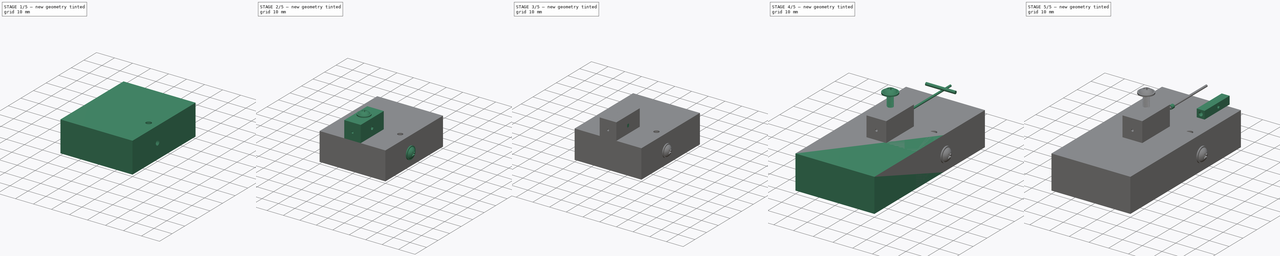
[diagram: build sequence overview — one tinted view per stage of 5, left to right]
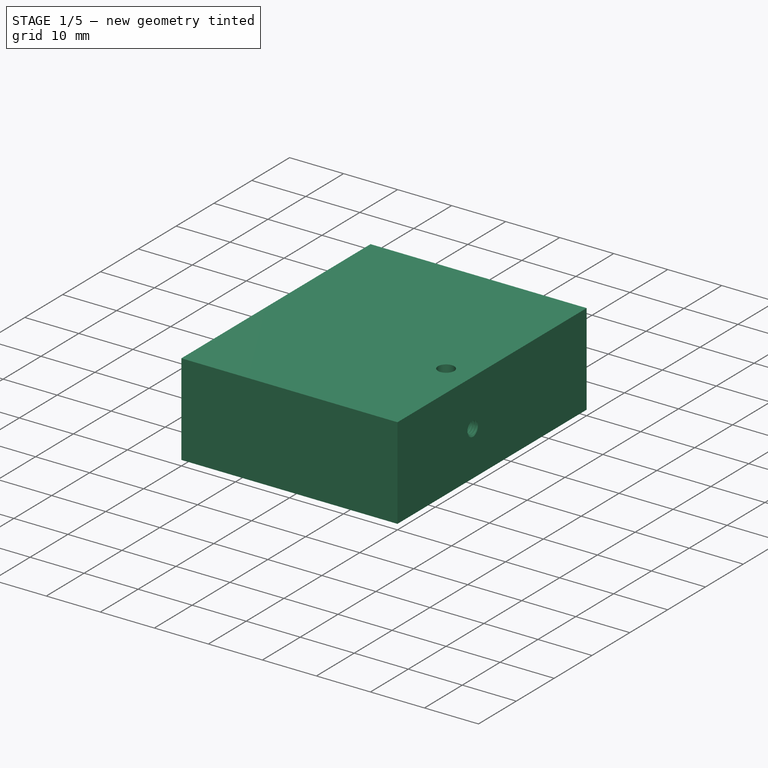
[diagram: stage 1 of 5 — iso view after this stage's code; geometry added in this stage tinted green]
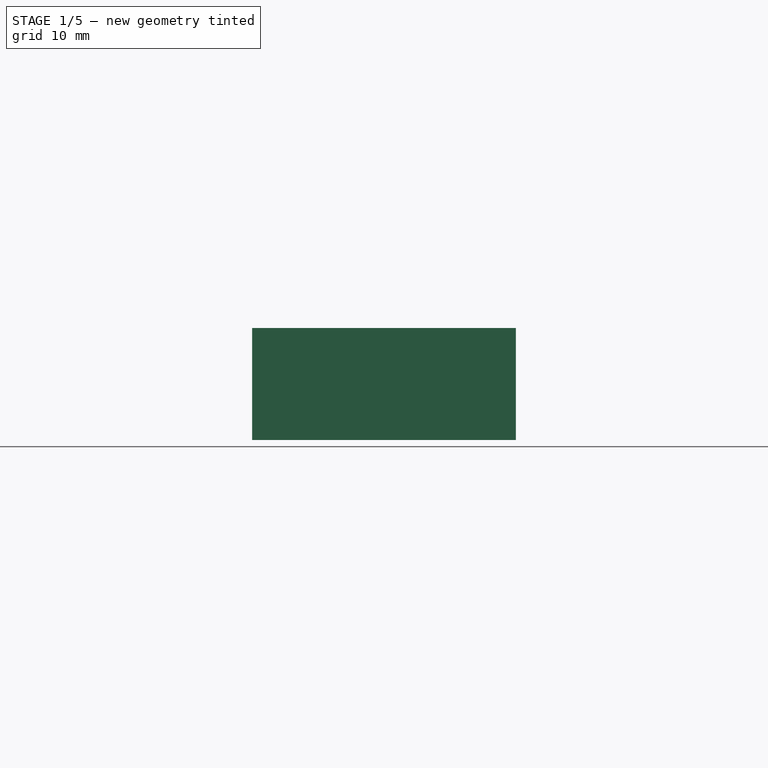
[diagram: stage 1 of 5 — front view after this stage's code; geometry added in this stage tinted green]
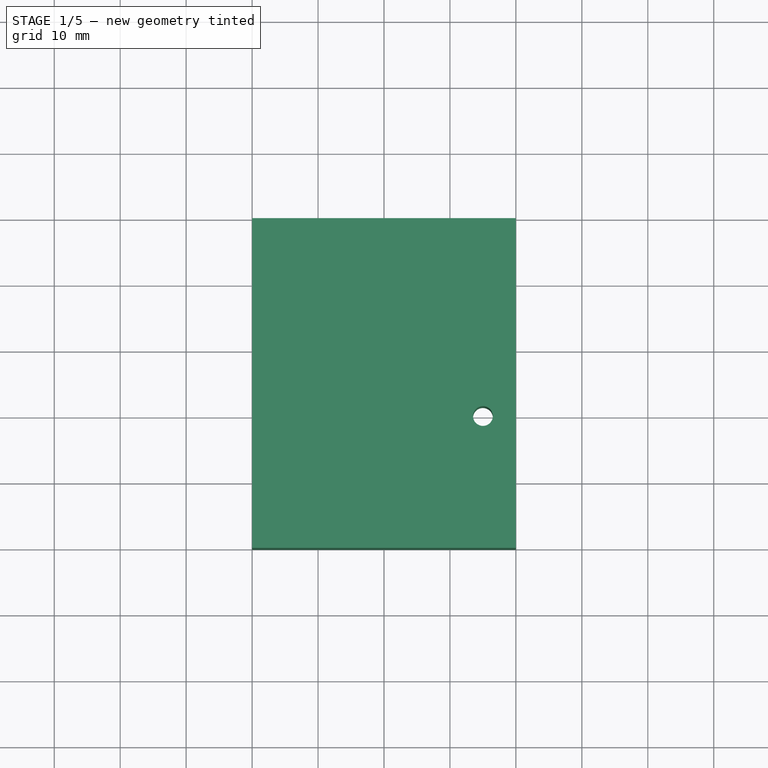
[diagram: stage 1 of 5 — top view after this stage's code; geometry added in this stage tinted green]
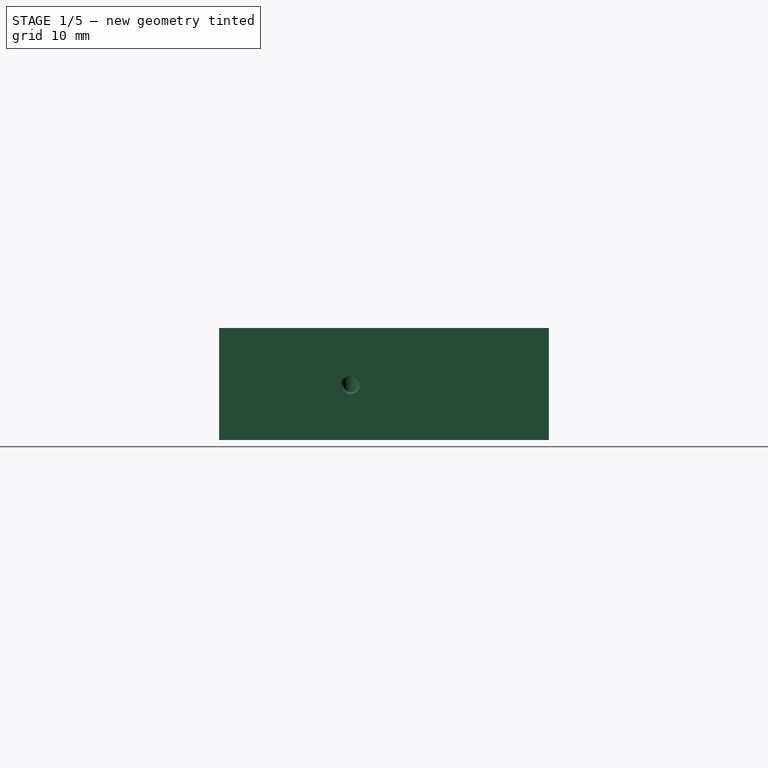
[diagram: stage 1 of 5 — right view after this stage's code; geometry added in this stage tinted green]
FCSTD DOCUMENT  (FreeCAD 0.18R4 (GitTag))
Label: Yb Copper collimator design
License: All rights reserved
LicenseURL: http://en.wikipedia.org/wiki/All_rights_reserved
objects: Part::FeaturePython×12, Sketcher::SketchObject×6, PartDesign::Body×6, Part::Feature×6, PartDesign::Pad×4, PartDesign::Revolution×2, Part::Cylinder×2, App::DocumentObjectGroup×2, Part::Cut×2
note: 46 computed .brp shape members not serialized (recipe doc carries the construction recipe); baked Part::Feature solids carry a one-line shape summary decoded from their .brp

FEATURE [PartDesign::Body] Body062021011152002  label="mainbody_source"
  Group = -> [Sketch199,Pad091]
  Origin = -> Origin207
  Placement = pos=(0,30,0) rot=(0,0,1;0rad)
  Tip = -> Pad091
FEATURE [Part::FeaturePython] Screw001  label="M3x6-Screw"  # Fasteners workbench fastener (typed FeaturePython)
  Placement = pos=(20.5,0,-13) rot=(0,1,0;1.5708rad)
  diameter = 1
  invert = false
  length = 2
  lengthCustom = 6
  matchOuter = false
  offset = 0
  thread = true
  type = 1
FEATURE [Part::Cylinder] Cylinder
  Angle = 360
  AttacherType = Attacher::AttachEngine3D
  Height = 20
  Placement = pos=(15,0,-23) rot=(0,0,1;0rad)
  Radius = 1.5
FEATURE [App::DocumentObjectGroup] GrExplode_Slice021  label="Exploded Slice021"
  Group = -> [Slice021_child0,Slice021_child1]
FEATURE [Part::Feature] Body062021011152002002  label="mainbody_source001"
  Placement = pos=(0,30,0) rot=(0,0,1;0rad)
  shape: bbox 40 x 50 x 17 mm, 6 faces (baked)
FEATURE [Part::Cut] Cut
  Base = -> Body062021011152002002
  Tool = -> Screw001
FEATURE [Part::Cut] Cut001
  Base = -> Cut
  Tool = -> Cylinder
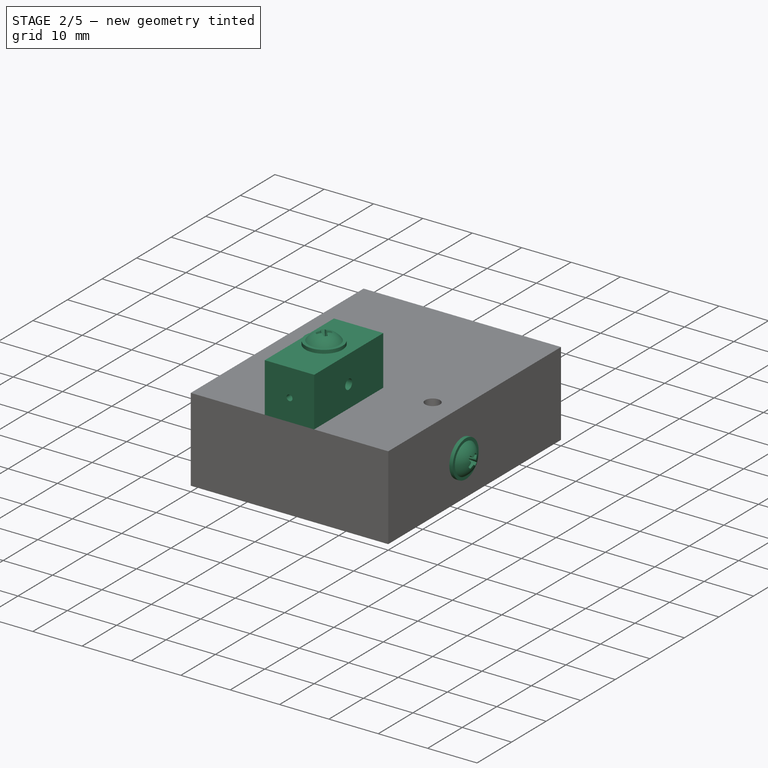
[diagram: stage 2 of 5 — iso view after this stage's code; geometry added in this stage tinted green]
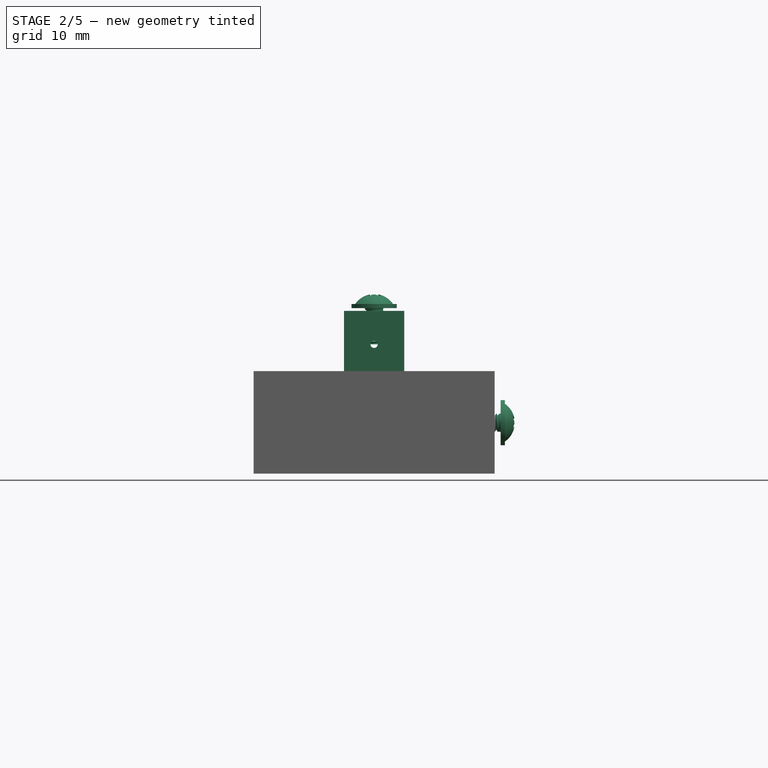
[diagram: stage 2 of 5 — front view after this stage's code; geometry added in this stage tinted green]
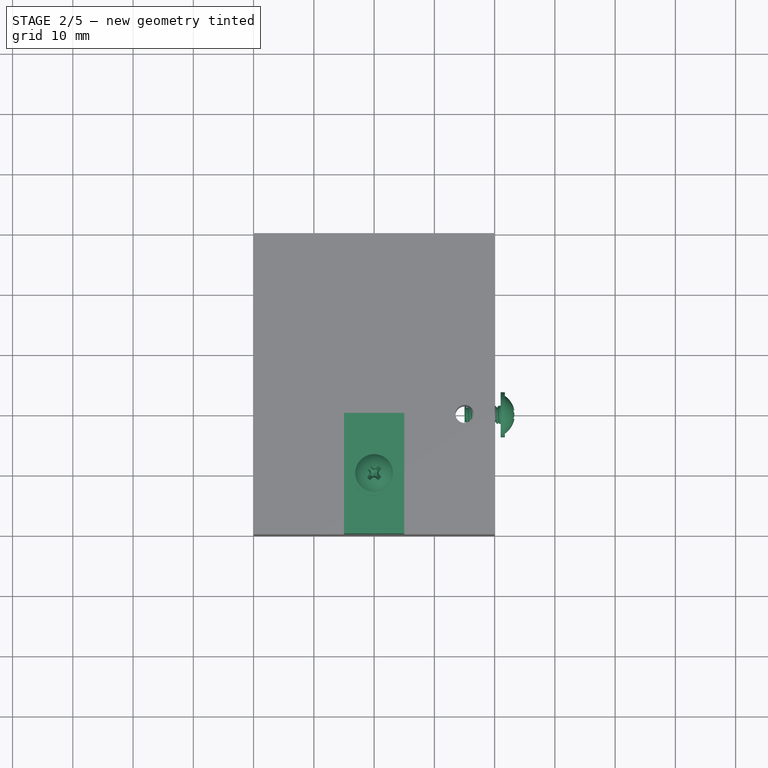
[diagram: stage 2 of 5 — top view after this stage's code; geometry added in this stage tinted green]
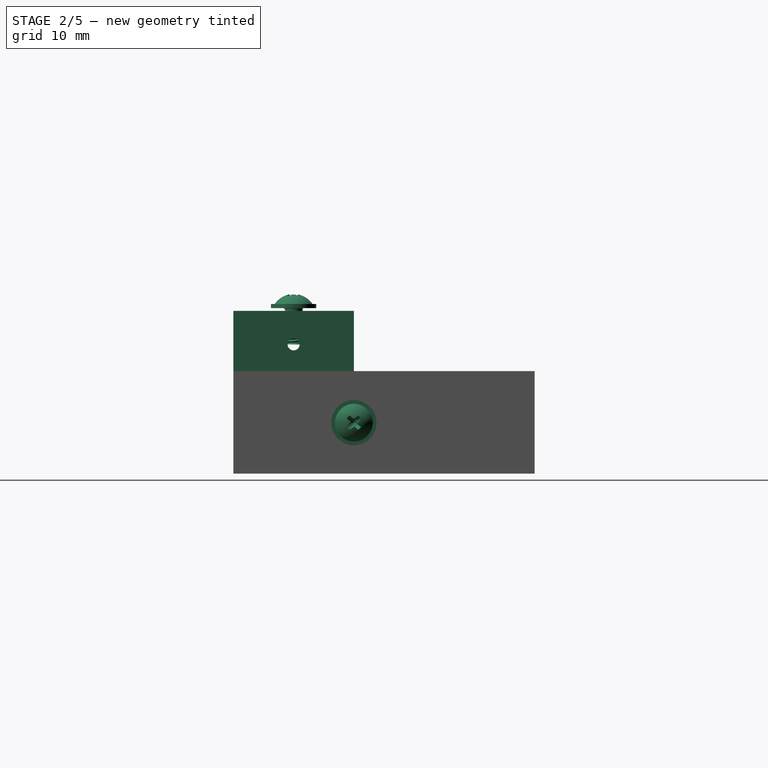
[diagram: stage 2 of 5 — right view after this stage's code; geometry added in this stage tinted green]
FEATURE [Part::Cylinder] Cylinder001
  Angle = 360
  AttacherType = Attacher::AttachEngine3D
  Height = 15
  Placement = pos=(7,-10,0) rot=(0,-1,0;1.5708rad)
  Radius = 1
FEATURE [Part::Feature] Body062021011152003  label="tube036"
  Placement = pos=(2.2e-15,-25.7426,-1e-16) rot=(0,0,1;0rad)
  shape: bbox 1.067 x 30 x 1.067 mm, 4 faces (baked)
FEATURE [Part::Feature] Body062021011152004  label="Body062021011152003"
  shape: bbox 10 x 20 x 10 mm, 7 faces (baked)
FEATURE [Part::Feature] Body062021011152002001  label="Body062021011152004"
  Placement = pos=(0,30,0) rot=(0,0,1;0rad)
  shape: bbox 40 x 50 x 17 mm, 6 faces (baked)
FEATURE [Part::FeaturePython] Slice  # WARN: FeaturePython — macro-defined, semantics opaque (R4)
  Base = -> Body062021011152004
  Mode = 1
  Tolerance = 0
  Tools = -> [Cylinder001]
FEATURE [Part::FeaturePython] Slice_child0  label="Slice.0"  # WARN: FeaturePython — macro-defined, semantics opaque (R4)
  Base = -> Slice
  FilterType = 1
  Invert = false
  OverrideMaxVal = 0
  WindowFrom = 80
  WindowTo = 100
  items = 0
FEATURE [App::DocumentObjectGroup] GrExplode_Slice  label="Exploded Slice"
  Group = -> [Slice_child0,Slice_child1]
FEATURE [Part::Feature] Slice_child0023  label="Slice.023"
  shape: bbox 10 x 20 x 10 mm, 9 faces (baked)
FEATURE [Part::FeaturePython] Screw003  label="M3x6-Screw002"  # Fasteners workbench fastener (typed FeaturePython)
  Placement = pos=(0,-10,6) rot=(0,0,1;0rad)
  diameter = 1
  invert = false
  length = 2
  lengthCustom = 6
  matchOuter = false
  offset = 0
  thread = true
  type = 1
FEATURE [Part::FeaturePython] Screw004  label="M3x6-Screw004"  # Fasteners workbench fastener (typed FeaturePython)
  Placement = pos=(21,0,-13) rot=(0,1,0;1.5708rad)
  diameter = 1
  invert = false
  length = 2
  lengthCustom = 6
  matchOuter = false
  offset = 0
  thread = true
  type = 1
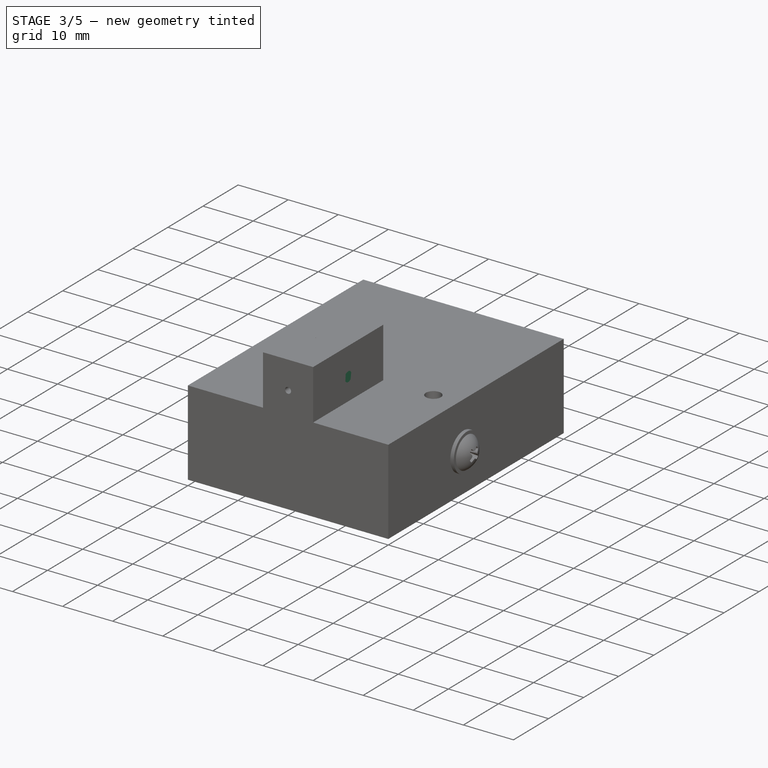
[diagram: stage 3 of 5 — iso view after this stage's code; geometry added in this stage tinted green]
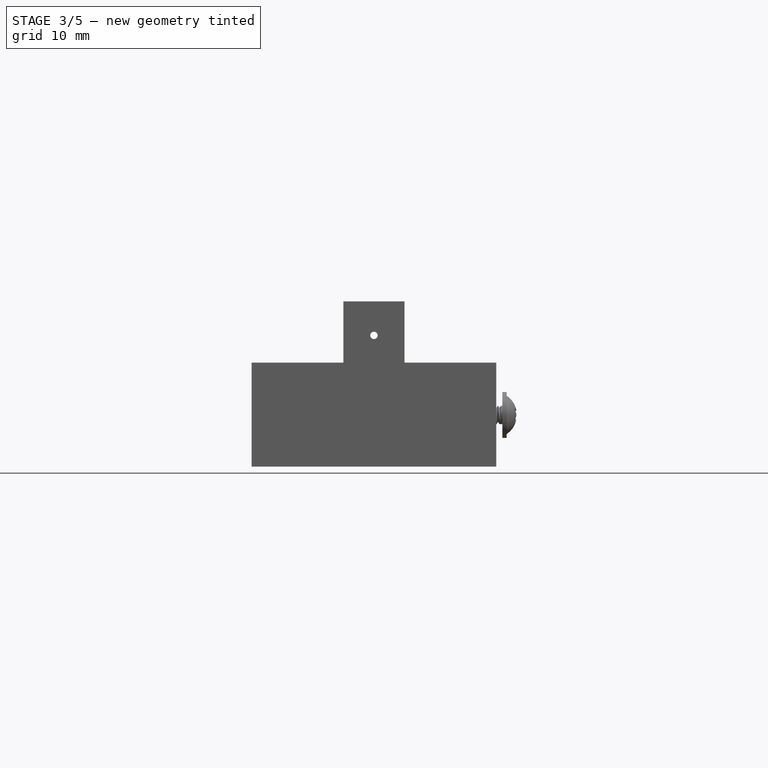
[diagram: stage 3 of 5 — front view after this stage's code; geometry added in this stage tinted green]
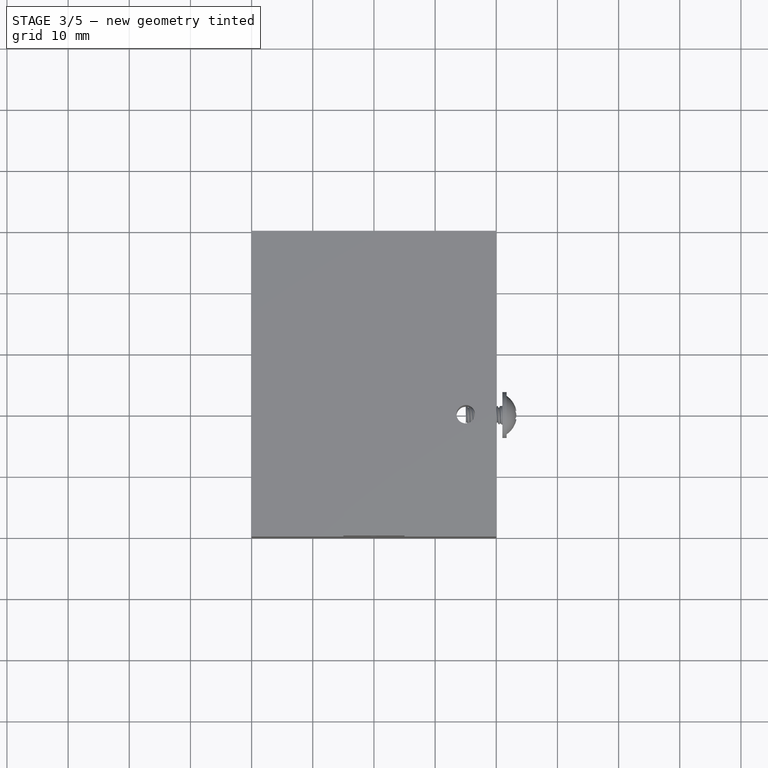
[diagram: stage 3 of 5 — top view after this stage's code; geometry added in this stage tinted green]
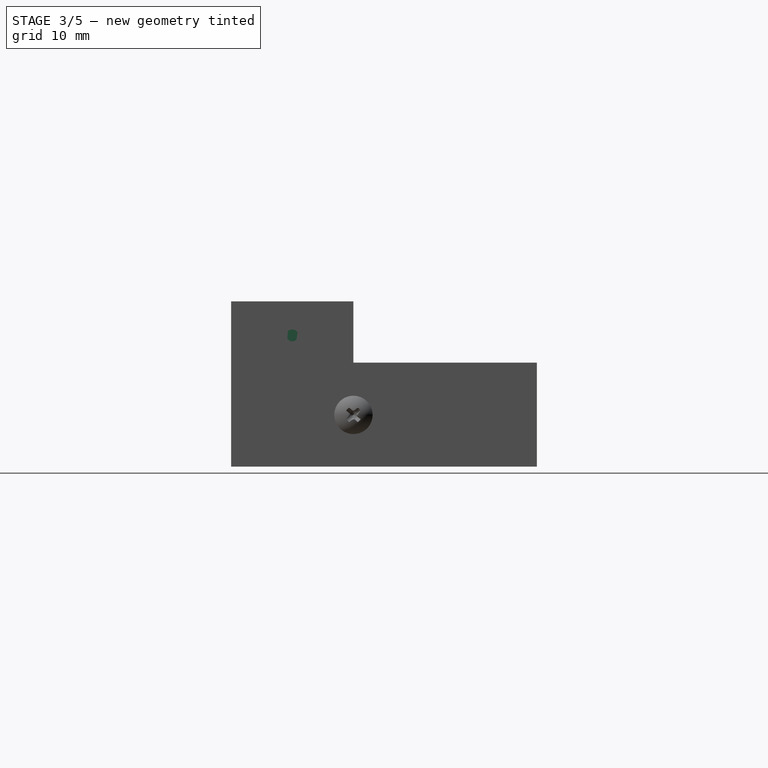
[diagram: stage 3 of 5 — right view after this stage's code; geometry added in this stage tinted green]
FEATURE [Part::FeaturePython] Slice_child1  label="Slice.1"  # WARN: FeaturePython — macro-defined, semantics opaque (R4)
  Base = -> Slice
  FilterType = 1
  Invert = false
  OverrideMaxVal = 0
  WindowFrom = 80
  WindowTo = 100
  items = 1
FEATURE [Part::FeaturePython] Slice021  # WARN: FeaturePython — macro-defined, semantics opaque (R4)
  Base = -> Slice_child0
  Mode = 1
  Tolerance = 0
  Tools = -> [Screw003]
FEATURE [Part::FeaturePython] Slice021_child0  label="sliced_body"  # WARN: FeaturePython — macro-defined, semantics opaque (R4)
  Base = -> Slice021
  FilterType = 1
  Invert = false
  OverrideMaxVal = 0
  WindowFrom = 80
  WindowTo = 100
  items = 0
FEATURE [Part::FeaturePython] Slice021_child1  label="Slice021.1"  # WARN: FeaturePython — macro-defined, semantics opaque (R4)
  Base = -> Slice021
  FilterType = 1
  Invert = false
  OverrideMaxVal = 0
  WindowFrom = 80
  WindowTo = 100
  items = 1
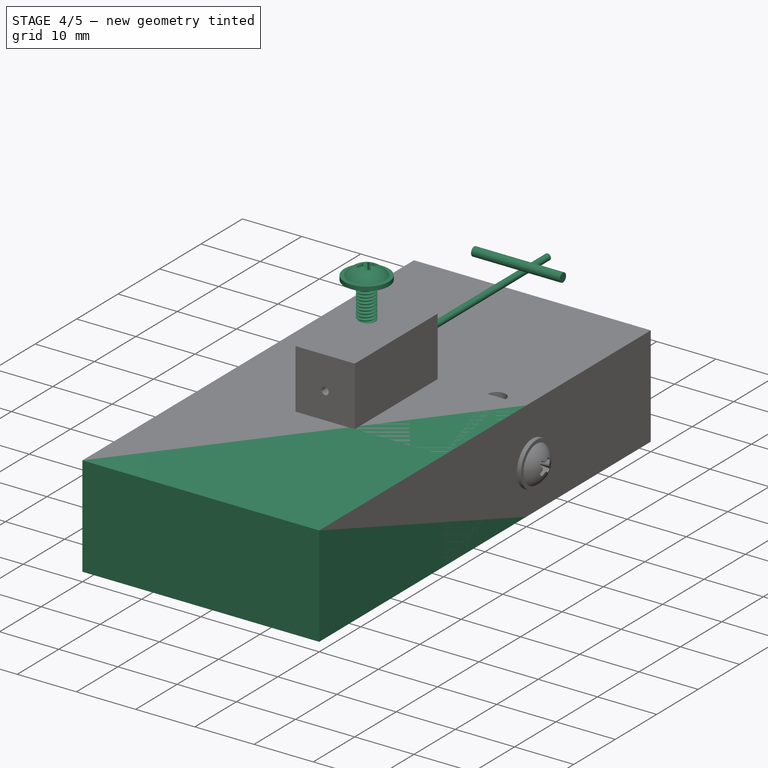
[diagram: stage 4 of 5 — iso view after this stage's code; geometry added in this stage tinted green]
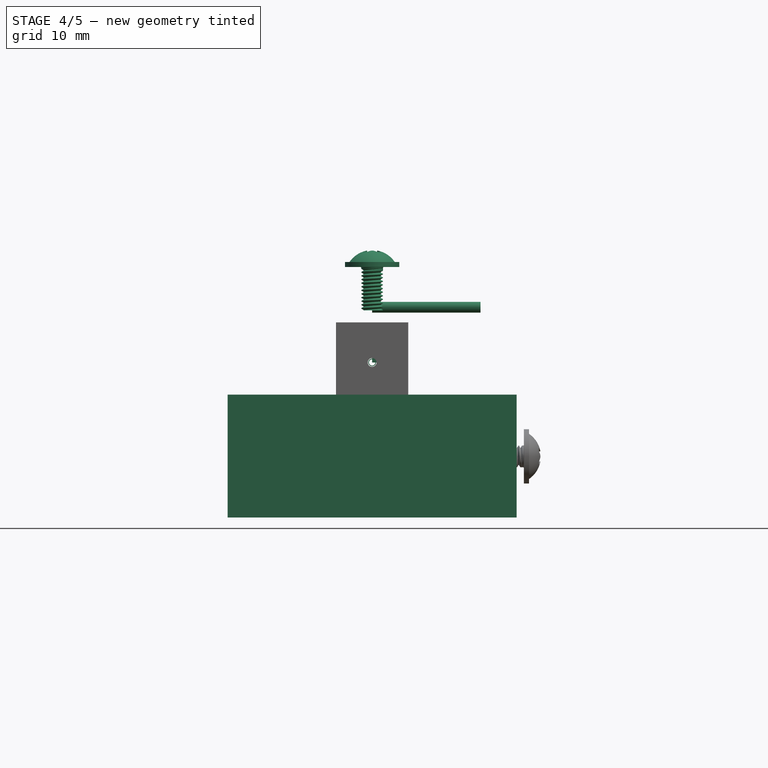
[diagram: stage 4 of 5 — front view after this stage's code; geometry added in this stage tinted green]
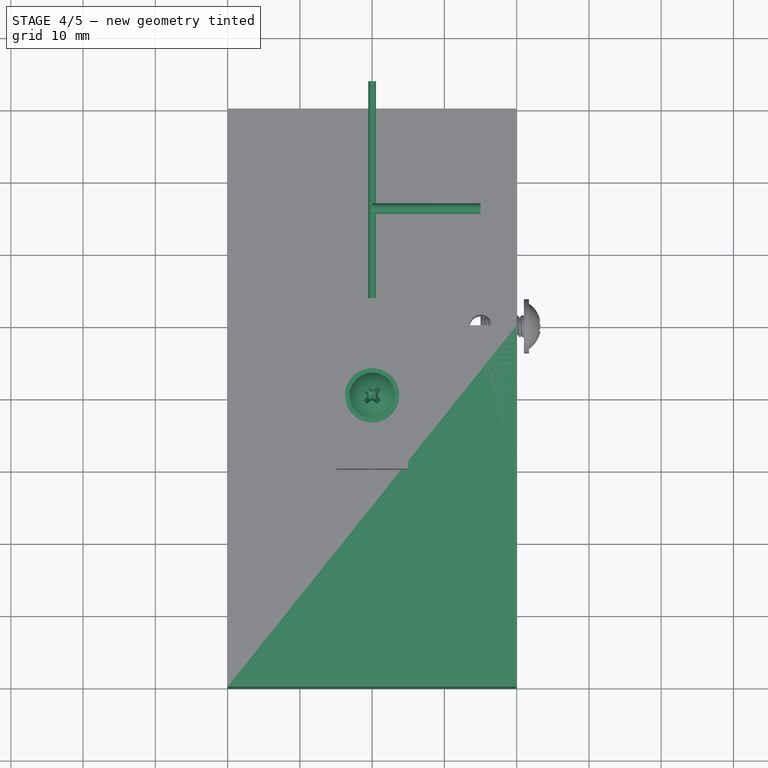
[diagram: stage 4 of 5 — top view after this stage's code; geometry added in this stage tinted green]
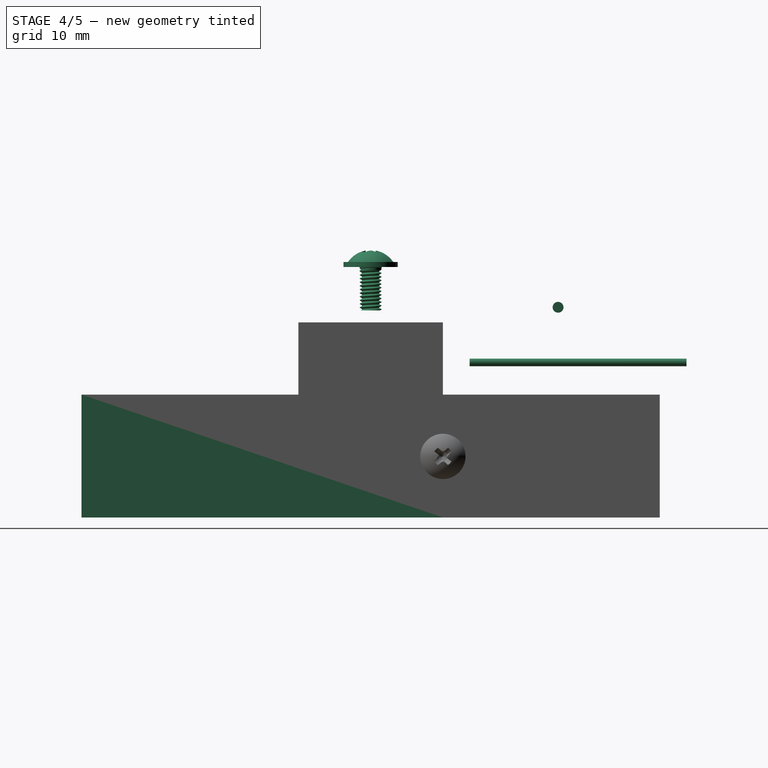
[diagram: stage 4 of 5 — right view after this stage's code; geometry added in this stage tinted green]
FEATURE [PartDesign::Body] Body062021011150  label="ring049"
  Group = -> [Sketch196,Revolution102]
  Origin = -> Origin205
  Placement = pos=(16.46,2.63,2) rot=(-1,0,0;0rad)
  Tip = -> Revolution102
FEATURE [PartDesign::Revolution] Revolution100
  Angle = 360
  Axis = (1e-16,1,-1e-16)
  Base = (0,0,0)
  Placement = pos=(0,0,0) rot=(0.57735,0.57735,0.57735;2.0944rad)
  Profile = -> Sketch197
  ReferenceAxis = -> Y_Axis199
  Reversed = true
FEATURE [PartDesign::Body] Body062021011152  label="tube034"
  Group = -> [Sketch197,Revolution100]
  Origin = -> Origin202
  Placement = pos=(16.46,4.3374,2) rot=(-1,0,0;0rad)
  Tip = -> Revolution100
FEATURE [PartDesign::Pad] Pad090
  Length = 15
  Length2 = 100
  Placement = pos=(0,0,0) rot=(0.57735,0.57735,0.57735;2.0944rad)
  Profile = -> Sketch189
  Type = 0
FEATURE [PartDesign::Body] Body062021011153
  Group = -> [Sketch189,Pad090]
  Origin = -> Origin206
  Placement = pos=(8,0.06211,-5.604) rot=(-1,0,0;0rad)
  Tip = -> Pad090
FEATURE [PartDesign::Pad] Pad089
  Length = 18.0991
  Length2 = 100
  Placement = pos=(0,0,0) rot=(1,0,0;1.5708rad)
  Profile = -> Sketch198
  Type = 0
FEATURE [Part::Feature] Body062021011152001  label="tube035"
  Placement = pos=(-1e-15,-25.2426,0) rot=(0,0,1;0rad)
  shape: bbox 1.067 x 16 x 1.067 mm, 4 faces (baked)
FEATURE [Sketcher::SketchObject] Sketch199
  MapMode = 5
  Placement = pos=(0,0,0) rot=(1,0,0;1.5708rad)
  Support = -> [XZ_Plane205]
  sketch-geometry (4):
    g0: LineSegment StartX=-20 StartY=-4.45 StartZ=0 EndX=20 EndY=-4.45 EndZ=0
    g1: LineSegment StartX=20 StartY=-4.45 StartZ=0 EndX=20 EndY=-21.45 EndZ=0
    g2: LineSegment StartX=20 StartY=-21.45 StartZ=0 EndX=-20 EndY=-21.45 EndZ=0
    g3: LineSegment StartX=-20 StartY=-21.45 StartZ=0 EndX=-20 EndY=-4.45 EndZ=0
  constraints (12):
    c: Coincident(g0,g1)
    c: Coincident(g1,g2)
    c: Coincident(g2,g3)
    c: Coincident(g3,g0)
    c: Horizontal(g0)
    c: Horizontal(g2)
    c: Vertical(g1)
    c: Vertical(g3)
    c: Distance(g1,g2) = 40
    c: Distance(g0,g1) = 17
    c: Distance(g-1,g3) = 20
    c: Distance(g-1,g2) = 21.45
FEATURE [PartDesign::Pad] Pad091
  Length = 50
  Length2 = 100
  Placement = pos=(0,0,0) rot=(1,0,0;1.5708rad)
  Profile = -> Sketch199
  Type = 0
FEATURE [Part::FeaturePython] Screw002  label="M3x6-Screw003"  # Fasteners workbench fastener (typed FeaturePython)
  Placement = pos=(0,-10,13.2) rot=(0,0,1;0rad)
  diameter = 1
  invert = false
  length = 2
  lengthCustom = 6
  matchOuter = false
  offset = 0
  thread = true
  type = 1
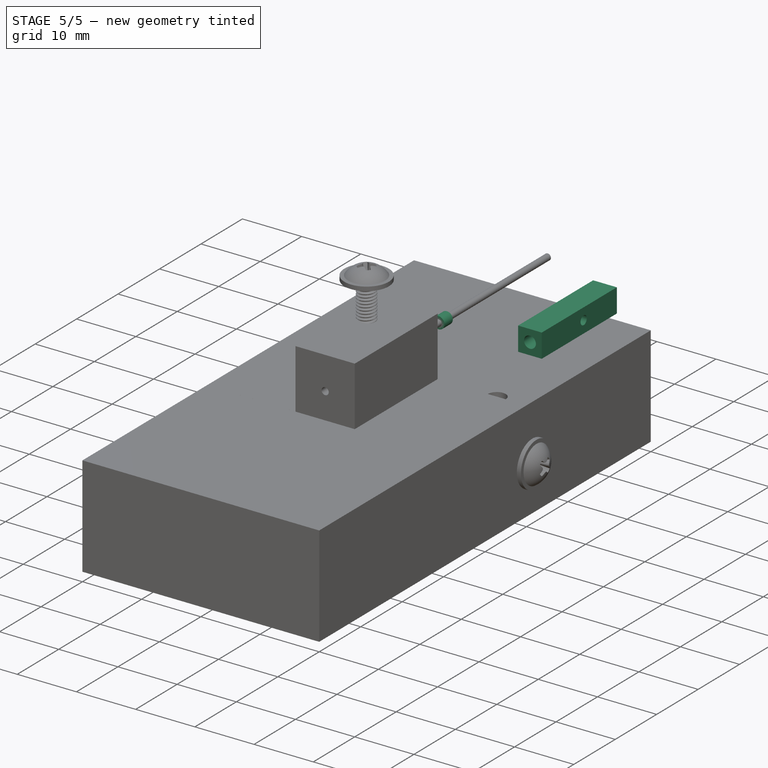
[diagram: stage 5 of 5 — iso view after this stage's code; geometry added in this stage tinted green]
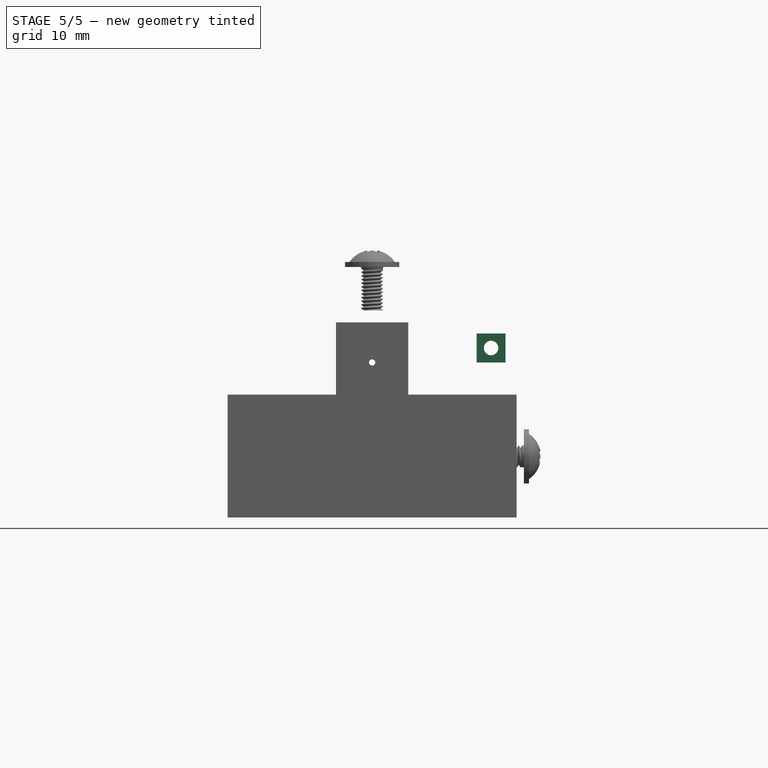
[diagram: stage 5 of 5 — front view after this stage's code; geometry added in this stage tinted green]
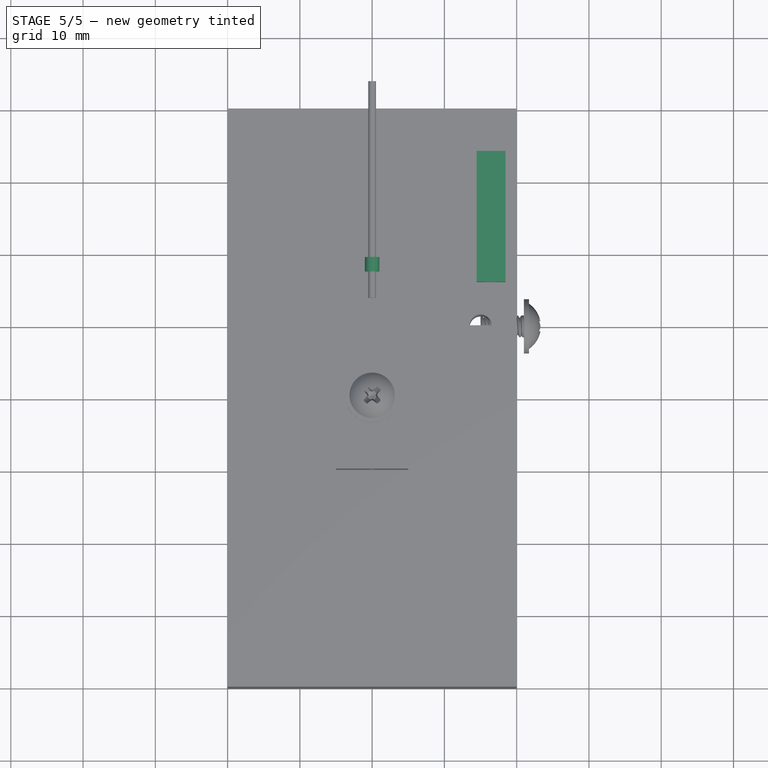
[diagram: stage 5 of 5 — top view after this stage's code; geometry added in this stage tinted green]
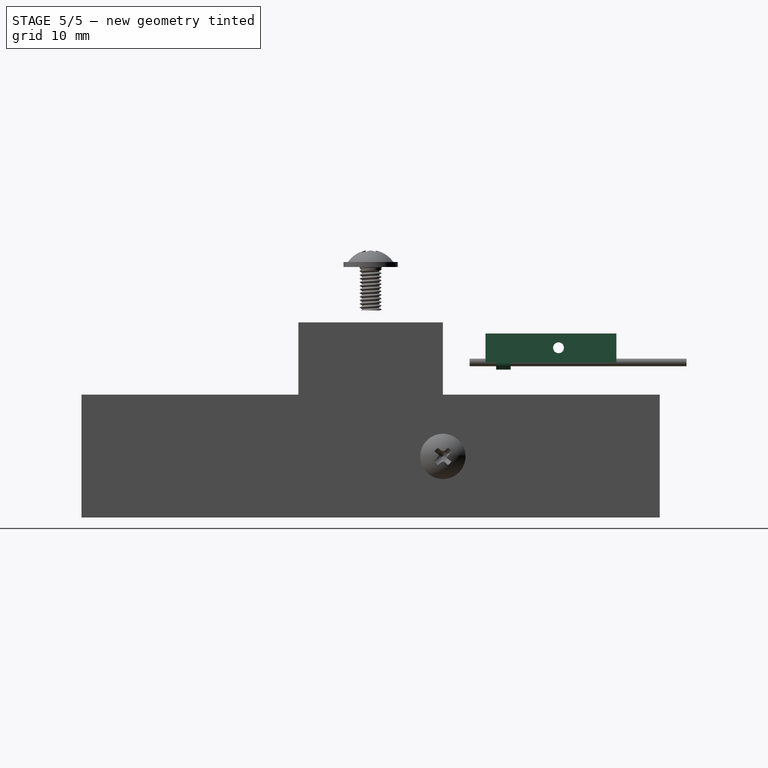
[diagram: stage 5 of 5 — right view after this stage's code; geometry added in this stage tinted green]
FEATURE [Sketcher::SketchObject] Sketch
  MapMode = 5
  Placement = pos=(0,0,0) rot=(1,0,0;1.5708rad)
  Support = -> [XZ_Plane]
  sketch-geometry (5):
    g0: LineSegment StartX=-5 StartY=5.55 StartZ=0 EndX=5 EndY=5.55 EndZ=0
    g1: LineSegment StartX=5 StartY=5.55 StartZ=0 EndX=5 EndY=-4.45 EndZ=0
    g2: LineSegment StartX=5 StartY=-4.45 StartZ=0 EndX=-5 EndY=-4.45 EndZ=0
    g3: LineSegment StartX=-5 StartY=-4.45 StartZ=0 EndX=-5 EndY=5.55 EndZ=0
    g4: Circle CenterX=0 CenterY=0 CenterZ=0 NormalX=0 NormalY=0 NormalZ=1 AngleXU=0 Radius=0.6
  constraints (14):
    c: Coincident(g0,g1)
    c: Coincident(g1,g2)
    c: Coincident(g2,g3)
    c: Coincident(g3,g0)
    c: Horizontal(g0)
    c: Horizontal(g2)
    c: Vertical(g1)
    c: Vertical(g3)
    c: Distance(g1,g2) = 10
    c: Distance(g0,g1) = 10
    c: Distance(g-1,g3) = 5
    c: Distance(g-1,g0) = 5.55
    c: Coincident(g4,g-1)
    c: Diameter(g4) = 1.2
FEATURE [PartDesign::Pad] Pad
  Length = 10
  Length2 = 100
  Placement = pos=(0,0,0) rot=(1,0,0;1.5708rad)
  Profile = -> Sketch
  Type = 0
FEATURE [PartDesign::Body] Body  label="body_source"
  Group = -> [Sketch,Pad]
  Origin = -> Origin
  Placement = pos=(0,-10,0) rot=(0,0,1;0rad)
  Tip = -> Pad
FEATURE [Sketcher::SketchObject] Sketch189
  MapMode = 5
  Placement = pos=(0,0,0) rot=(0.57735,0.57735,0.57735;2.0944rad)
  Support = -> [YZ_Plane206]
  sketch-geometry (1):
    g0: Circle CenterX=15.9379 CenterY=7.63543 CenterZ=0 NormalX=0 NormalY=0 NormalZ=1 AngleXU=0 Radius=0.75
  constraints (1):
    c: Diameter(g0) = 1.5
FEATURE [Sketcher::SketchObject] Sketch196
  MapMode = 5
  Placement = pos=(0,0,0) rot=(0.57735,0.57735,0.57735;2.0944rad)
  Support = -> [YZ_Plane201]
  sketch-geometry (4):
    g0: LineSegment StartX=7.37 StartY=-0.5334 StartZ=0 EndX=9.37 EndY=-0.5334 EndZ=0
    g1: LineSegment StartX=9.37 StartY=-0.5334 StartZ=0 EndX=9.37 EndY=-1 EndZ=0
    g2: LineSegment StartX=9.37 StartY=-1 StartZ=0 EndX=7.37 EndY=-1 EndZ=0
    g3: LineSegment StartX=7.37 StartY=-1 StartZ=0 EndX=7.37 EndY=-0.5334 EndZ=0
  constraints (12):
    c: Coincident(g0,g1)
    c: Coincident(g1,g2)
    c: Coincident(g2,g3)
    c: Coincident(g3,g0)
    c: Horizontal(g0)
    c: Horizontal(g2)
    c: Vertical(g1)
    c: Vertical(g3)
    c: Distance(g0,g1) = 0.4666
    c: DistanceY(g-1,g0) = -0.5334
    c: DistanceX(g2,g2) = 2
    c: Distance(g2,g-2) = 7.37
FEATURE [Sketcher::SketchObject] Sketch197
  MapMode = 5
  Placement = pos=(0,0,0) rot=(0.57735,0.57735,0.57735;2.0944rad)
  Support = -> [YZ_Plane205]
  sketch-geometry (4):
    g0: LineSegment StartX=33.7012 StartY=-0.4318 StartZ=0 EndX=33.7012 EndY=-0.5334 EndZ=0
    g1: LineSegment StartX=33.7012 StartY=-0.5334 StartZ=0 EndX=3.70124 EndY=-0.5334 EndZ=0
    g2: LineSegment StartX=33.7012 StartY=-0.4318 StartZ=0 EndX=3.70124 EndY=-0.4318 EndZ=0
    g3: LineSegment StartX=3.70124 StartY=-0.4318 StartZ=0 EndX=3.70124 EndY=-0.5334 EndZ=0
  constraints (11):
    c: Horizontal(g1)
    c: Vertical(g0)
    c: DistanceY(g0,g0) = 0.1016
    c: DistanceY(g-1,g0) = -0.5334
    c: Coincident(g0,g2)
    c: Horizontal(g2)
    c: Coincident(g2,g3)
    c: Coincident(g3,g1)
    c: Parallel(g3,g0)
    c: Coincident(g0,g1)
    c: DistanceX(g2,g2) = 30
FEATURE [Sketcher::SketchObject] Sketch198
  MapMode = 5
  Placement = pos=(0,0,0) rot=(1,0,0;1.5708rad)
  Support = -> [XZ_Plane203]
  sketch-geometry (5):
    g0: LineSegment StartX=0 StartY=0 StartZ=0 EndX=4 EndY=0 EndZ=0
    g1: LineSegment StartX=4 StartY=0 StartZ=0 EndX=4 EndY=4 EndZ=0
    g2: LineSegment StartX=4 StartY=4 StartZ=0 EndX=0 EndY=4 EndZ=0
    g3: LineSegment StartX=0 StartY=4 StartZ=0 EndX=0 EndY=0 EndZ=0
    g4: Circle CenterX=2 CenterY=2 CenterZ=0 NormalX=0 NormalY=0 NormalZ=1 AngleXU=0 Radius=1
  constraints (14):
    c: Coincident(g0,g1)
    c: Coincident(g1,g2)
    c: Coincident(g2,g3)
    c: Coincident(g3,g0)
    c: Horizontal(g0)
    c: Horizontal(g2)
    c: Vertical(g1)
    c: Vertical(g3)
    c: Coincident(g0,g-1)
    c: DistanceY(g1,g1) = 4
    c: Diameter(g4) = 2
    c: DistanceX(g0,g0) = 4
    c: Distance(g4,g0) = 2
    c: Distance(g4,g1) = 2
FEATURE [PartDesign::Revolution] Revolution102
  Angle = 360
  Axis = (1e-16,1,-1e-16)
  Base = (0,0,0)
  Placement = pos=(0,0,0) rot=(0.57735,0.57735,0.57735;2.0944rad)
  Profile = -> Sketch196
  ReferenceAxis = -> Y_Axis205
  Reversed = true
FEATURE [PartDesign::Body] Body062021011154  label="holder027"
  Group = -> [Sketch198,Pad089]
  Origin = -> Origin203
  Placement = pos=(14.46,24,0) rot=(-1,0,0;0rad)
  Tip = -> Pad089
FEATURE [Part::FeaturePython] Slice020  # WARN: FeaturePython — macro-defined, semantics opaque (R4)
  Base = -> Body062021011154
  Mode = 1
  Tolerance = 0
  Tools = -> [Body062021011153]
FEATURE [Part::FeaturePython] Slice_child022  label="Slice.022"  # WARN: FeaturePython — macro-defined, semantics opaque (R4)
  Base = -> Slice020
  FilterType = 1
  Invert = false
  OverrideMaxVal = 0
  WindowFrom = 80
  WindowTo = 100
  items = 0
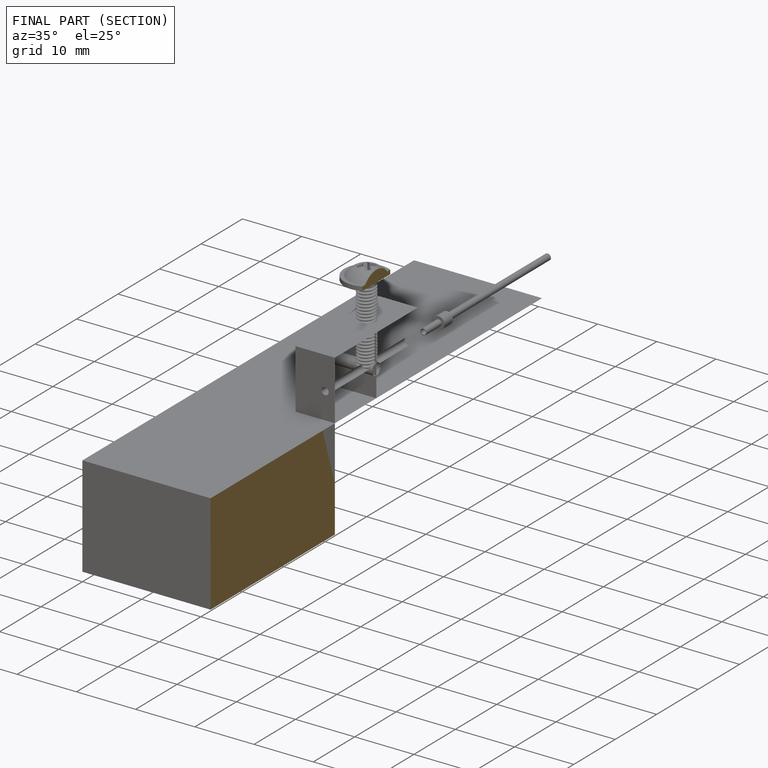
[diagram: finished part — half-section view (interior)]
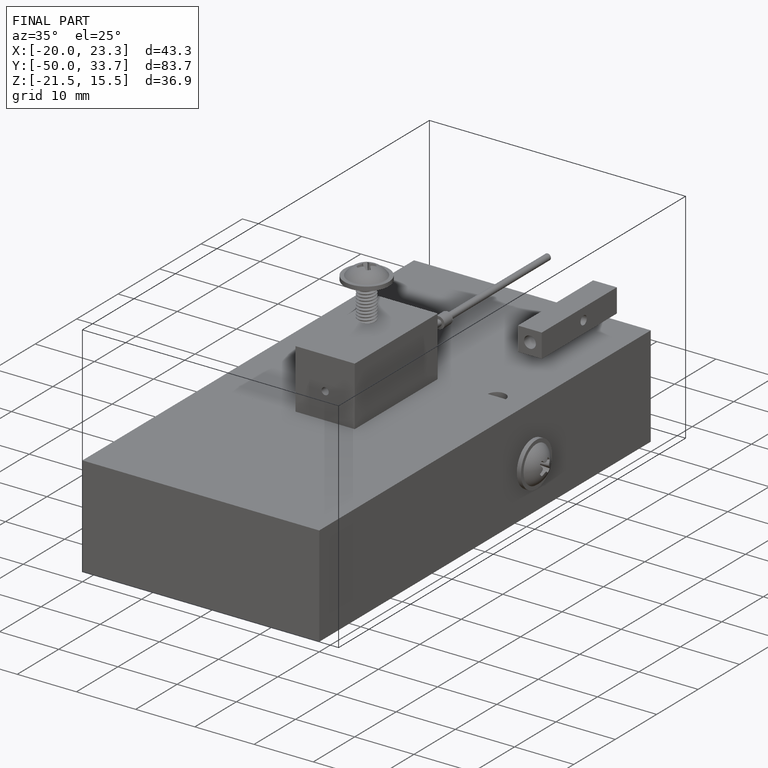
[diagram: finished part — iso view with bounding-box wireframe]
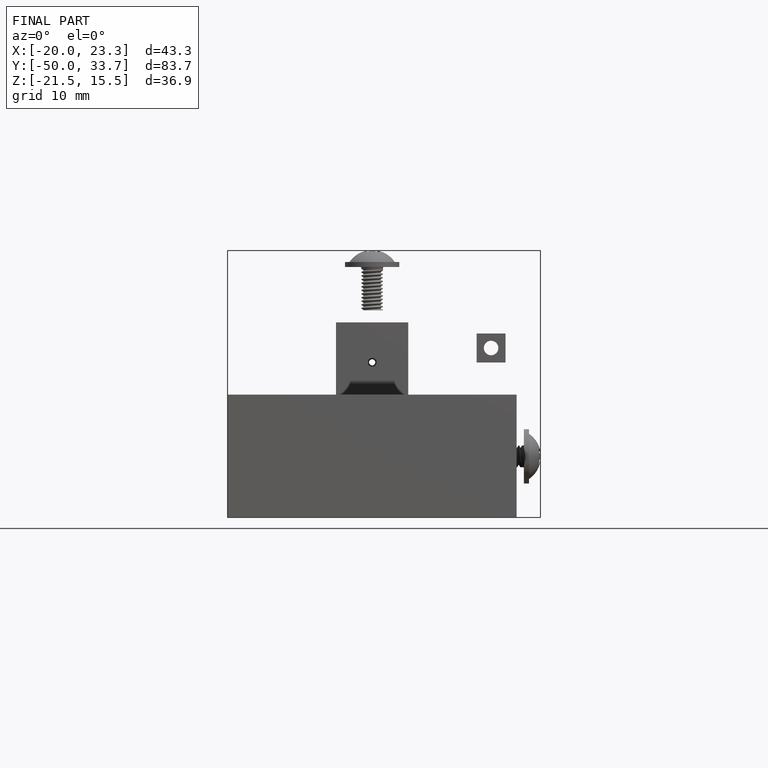
[diagram: finished part — front view with bounding-box wireframe]
